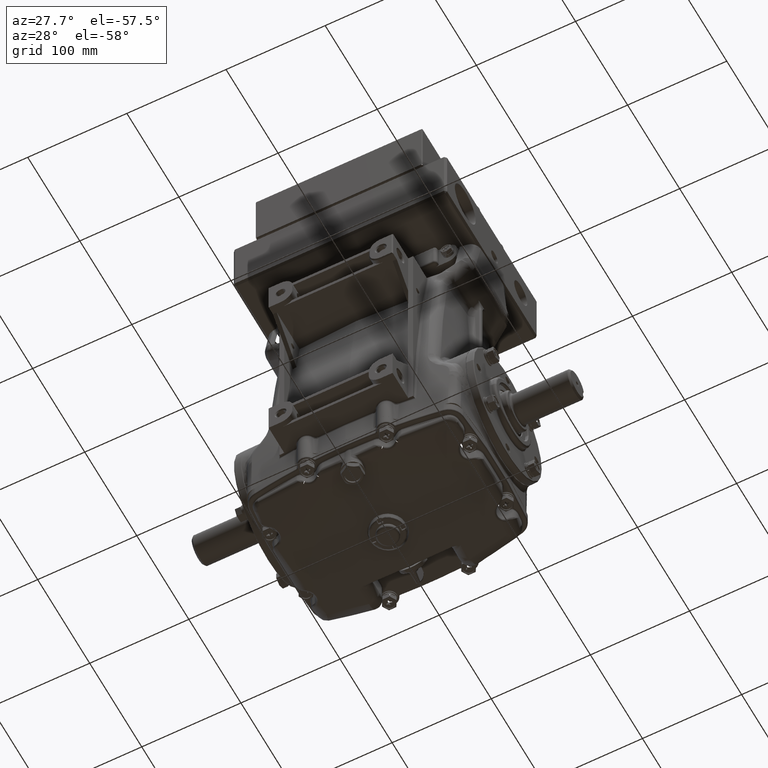
[diagram: clean part render]
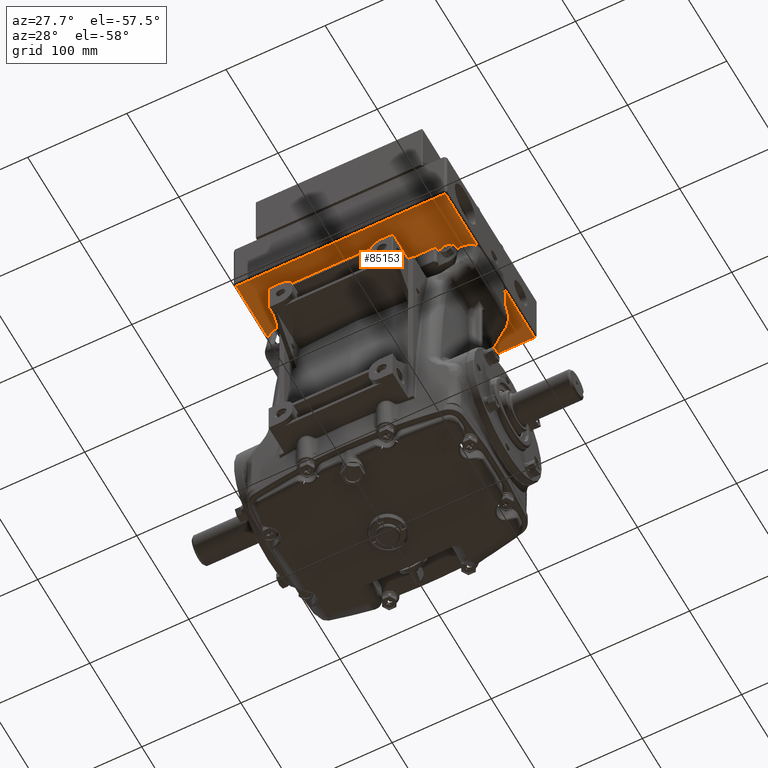
[diagram: same view with one face highlighted and labeled with its STEP entity id]
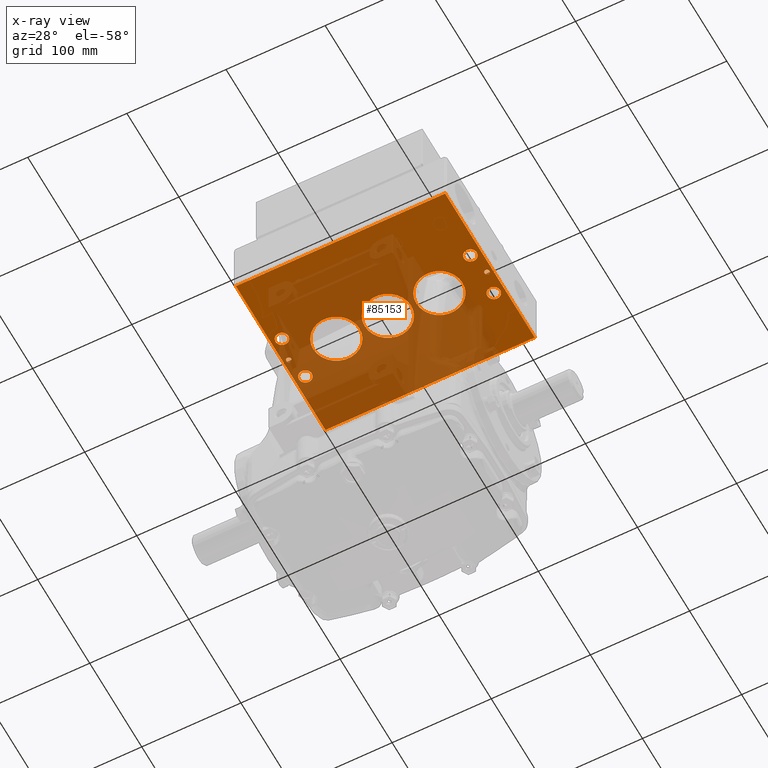
[diagram: x-ray of the same camera — body ghosted, the highlighted face saturated]
A machine part, auxiliary view. The second image highlights one B-rep face of the part: STEP entity #85153.
The next image is the same camera in x-ray: the body ghosted, the highlighted face saturated — about 65% of this face is hidden behind the body in this view.
In plain terms, the highlighted planar face has unit normal (-0, 0, 1).
Its self-contained STEP definition (entity closure, byte-faithful):
#1901 = EDGE_CURVE ( 'NONE', #60821, #31661, #63477, .T. ) ;
#2757 = EDGE_CURVE ( 'NONE', #40532, #23945, #15904, .T. ) ;
#3490 = EDGE_CURVE ( 'NONE', #50782, #42463, #26806, .T. ) ;
#3575 = DIRECTION ( 'NONE',  ( 1.000000000000000000, 0.000000000000000000, 0.000000000000000000 ) ) ;
#3998 = AXIS2_PLACEMENT_3D ( 'NONE', #31350, #24570, #45349 ) ;
#4094 = VERTEX_POINT ( 'NONE', #49970 ) ;
#4664 = AXIS2_PLACEMENT_3D ( 'NONE', #54120, #81774, #19759 ) ;
#5091 = AXIS2_PLACEMENT_3D ( 'NONE', #45930, #87185, #23813 ) ;
#5723 = VECTOR ( 'NONE', #37390, 39.37007874015748143 ) ;
#6066 = CARTESIAN_POINT ( 'NONE',  ( 3.637733168026193731, 0.4370930789018504514, 9.921259842518608707 ) ) ;
#6372 = DIRECTION ( 'NONE',  ( -0.000000000000000000, -0.000000000000000000, -1.000000000000000000 ) ) ;
#6400 = ORIENTED_EDGE ( 'NONE', *, *, #59293, .T. ) ;
#6908 = CARTESIAN_POINT ( 'NONE',  ( 3.795213482986822928, -0.4487336927516928364, 9.921259842518608707 ) ) ;
#7062 = CARTESIAN_POINT ( 'NONE',  ( 2.766316845340539121, 0.4370930789018507290, 9.921259842518608707 ) ) ;
#7924 = ORIENTED_EDGE ( 'NONE', *, *, #50492, .T. ) ;
#8088 = VERTEX_POINT ( 'NONE', #36154 ) ;
#8580 = CIRCLE ( 'NONE', #53393, 0.2559055118110233340 ) ;
#8583 = CIRCLE ( 'NONE', #44684, 0.9199222599915151122 ) ;
#9607 = DIRECTION ( 'NONE',  ( -0.000000000000000000, 0.000000000000000000, 1.000000000000000000 ) ) ;
#9803 = EDGE_CURVE ( 'NONE', #31661, #60821, #71487, .T. ) ;
#10321 = CARTESIAN_POINT ( 'NONE',  ( -4.196912501265145146, 1.322919850555393628, 9.921259842518608707 ) ) ;
#11657 = DIRECTION ( 'NONE',  ( -0.000000000000000000, -0.000000000000000000, 1.000000000000000000 ) ) ;
#12116 = AXIS2_PLACEMENT_3D ( 'NONE', #58771, #36183, #71002 ) ;
#12167 = DIRECTION ( 'NONE',  ( -0.000000000000000000, -0.000000000000000000, 1.000000000000000000 ) ) ;
#13322 = DIRECTION ( 'NONE',  ( 1.000000000000000000, 0.000000000000000000, 0.000000000000000000 ) ) ;
#13517 = EDGE_CURVE ( 'NONE', #32383, #13790, #60373, .T. ) ;
#13790 = VERTEX_POINT ( 'NONE', #50218 ) ;
#14092 = CARTESIAN_POINT ( 'NONE',  ( -4.039432186304516392, 0.4370930789018504514, 9.921259842518608707 ) ) ;
#14301 = EDGE_LOOP ( 'NONE', ( #18478, #35815 ) ) ;
#14412 = VERTEX_POINT ( 'NONE', #82797 ) ;
#14879 = VERTEX_POINT ( 'NONE', #22910 ) ;
#14910 = DIRECTION ( 'NONE',  ( -0.000000000000000000, -0.000000000000000000, -1.000000000000000000 ) ) ;
#15257 = LINE ( 'NONE', #84941, #44242 ) ;
#15357 = DIRECTION ( 'NONE',  ( -1.000000000000000000, 0.000000000000000000, 0.000000000000000000 ) ) ;
#15904 = CIRCLE ( 'NONE', #53472, 0.2559055118110233340 ) ;
#15963 = EDGE_CURVE ( 'NONE', #76022, #50782, #50476, .T. ) ;
#16123 = CARTESIAN_POINT ( 'NONE',  ( 3.952693797947458343, -3.224324243932790601, 9.921259842518608707 ) ) ;
#16215 = CIRCLE ( 'NONE', #4664, 0.2559055118110233340 ) ;
#16402 = CARTESIAN_POINT ( 'NONE',  ( 1.846394585349027784, 0.4370930789018507290, 9.921259842518608707 ) ) ;
#16701 = CARTESIAN_POINT ( 'NONE',  ( -4.354392816225778340, 3.626069456854607242, 9.921259842518608707 ) ) ;
#16788 = EDGE_LOOP ( 'NONE', ( #68079, #23711 ) ) ;
#17879 = CIRCLE ( 'NONE', #82936, 0.9199222599915151122 ) ;
#18396 = CARTESIAN_POINT ( 'NONE',  ( -2.248093603627350223, 0.4370930789018501739, 9.921259842518608707 ) ) ;
#18478 = ORIENTED_EDGE ( 'NONE', *, *, #50263, .F. ) ;
#19641 = AXIS2_PLACEMENT_3D ( 'NONE', #26903, #61259, #13322 ) ;
#19663 = EDGE_CURVE ( 'NONE', #13790, #32383, #24771, .T. ) ;
#19759 = DIRECTION ( 'NONE',  ( 1.000000000000000000, 0.000000000000000000, 0.000000000000000000 ) ) ;
#20970 = AXIS2_PLACEMENT_3D ( 'NONE', #16402, #9607, #37220 ) ;
#22585 = EDGE_LOOP ( 'NONE', ( #76767, #39014 ) ) ;
#22910 = CARTESIAN_POINT ( 'NONE',  ( -3.168015863618865335, 0.4370930789018503404, 9.921259842518608707 ) ) ;
#23711 = ORIENTED_EDGE ( 'NONE', *, *, #86005, .T. ) ;
#23813 = DIRECTION ( 'NONE',  ( 1.000000000000000000, 0.000000000000000000, 0.000000000000000000 ) ) ;
#23945 = VERTEX_POINT ( 'NONE', #51408 ) ;
#24520 = AXIS2_PLACEMENT_3D ( 'NONE', #42798, #65385, #56781 ) ;
#24570 = DIRECTION ( 'NONE',  ( -0.000000000000000000, 0.000000000000000000, 1.000000000000000000 ) ) ;
#24708 = PLANE ( 'NONE',  #5091 ) ;
#24771 = CIRCLE ( 'NONE', #43456, 0.9199222599915148901 ) ;
#25160 = FACE_BOUND ( 'NONE', #71725, .T. ) ;
#25750 = CARTESIAN_POINT ( 'NONE',  ( 3.539307971175799761, -0.4487336927516928364, 9.921259842518608707 ) ) ;
#26806 = LINE ( 'NONE', #47580, #46369 ) ;
#26903 = CARTESIAN_POINT ( 'NONE',  ( 3.539307971175799761, 1.322919850555393628, 9.921259842518608707 ) ) ;
#27150 = CARTESIAN_POINT ( 'NONE',  ( 3.736158364876587257, 0.4370930789018504514, 9.921259842518608707 ) ) ;
#27195 = EDGE_CURVE ( 'NONE', #67287, #85691, #81802, .T. ) ;
#27693 = DIRECTION ( 'NONE',  ( -1.000000000000000000, -1.290957005378088335E-16, 0.000000000000000000 ) ) ;
#27857 = CARTESIAN_POINT ( 'NONE',  ( -4.354392816225780116, -3.145584086452483330, 9.921259842518608707 ) ) ;
#28221 = CARTESIAN_POINT ( 'NONE',  ( 0.7190727508523536704, 0.4370930789018504514, 9.921259842518608707 ) ) ;
#28694 = EDGE_LOOP ( 'NONE', ( #39852, #78644 ) ) ;
#29550 = DIRECTION ( 'NONE',  ( 1.000000000000000000, 1.290957005378089075E-16, 0.000000000000000000 ) ) ;
#30152 = DIRECTION ( 'NONE',  ( 1.577021341797097560E-16, 1.000000000000000000, 0.000000000000000000 ) ) ;
#30709 = DIRECTION ( 'NONE',  ( -0.000000000000000000, -0.000000000000000000, 1.000000000000000000 ) ) ;
#30854 = DIRECTION ( 'NONE',  ( 1.000000000000000000, 0.000000000000000000, 0.000000000000000000 ) ) ;
#31350 = CARTESIAN_POINT ( 'NONE',  ( -0.2008495091391611642, 0.4370930789018504514, 9.921259842518608707 ) ) ;
#31485 = FACE_BOUND ( 'NONE', #65929, .T. ) ;
#31661 = VERTEX_POINT ( 'NONE', #79073 ) ;
#31675 = EDGE_LOOP ( 'NONE', ( #56565, #77240 ) ) ;
#31937 = FACE_OUTER_BOUND ( 'NONE', #60156, .T. ) ;
#31939 = EDGE_CURVE ( 'NONE', #4094, #54412, #16215, .T. ) ;
#32383 = VERTEX_POINT ( 'NONE', #28221 ) ;
#32586 = ORIENTED_EDGE ( 'NONE', *, *, #83492, .T. ) ;
#33389 = VERTEX_POINT ( 'NONE', #69251 ) ;
#33858 = CARTESIAN_POINT ( 'NONE',  ( -3.685101477643098811, -0.4487336927516928364, 9.921259842518608707 ) ) ;
#34088 = DIRECTION ( 'NONE',  ( -0.000000000000000000, 0.000000000000000000, 1.000000000000000000 ) ) ;
#34895 = DIRECTION ( 'NONE',  ( -0.000000000000000000, 0.000000000000000000, 1.000000000000000000 ) ) ;
#35302 = DIRECTION ( 'NONE',  ( -1.000000000000000000, 0.000000000000000000, 0.000000000000000000 ) ) ;
#35815 = ORIENTED_EDGE ( 'NONE', *, *, #40297, .F. ) ;
#36097 = CARTESIAN_POINT ( 'NONE',  ( 3.539307971175799761, 1.322919850555393628, 9.921259842518608707 ) ) ;
#36154 = CARTESIAN_POINT ( 'NONE',  ( 0.9264723253575164463, 0.4370930789018508955, 9.921259842518608707 ) ) ;
#36183 = DIRECTION ( 'NONE',  ( -0.000000000000000000, 0.000000000000000000, 1.000000000000000000 ) ) ;
#36710 = ORIENTED_EDGE ( 'NONE', *, *, #54608, .T. ) ;
#37200 = DIRECTION ( 'NONE',  ( -0.000000000000000000, -0.000000000000000000, 1.000000000000000000 ) ) ;
#37220 = DIRECTION ( 'NONE',  ( 1.000000000000000000, 0.000000000000000000, 0.000000000000000000 ) ) ;
#37390 = DIRECTION ( 'NONE',  ( 6.308085367188390241E-16, -1.000000000000000000, 0.000000000000000000 ) ) ;
#38141 = CIRCLE ( 'NONE', #20970, 0.9199222599915113374 ) ;
#38274 = FACE_BOUND ( 'NONE', #22585, .T. ) ;
#39014 = ORIENTED_EDGE ( 'NONE', *, *, #1901, .F. ) ;
#39852 = ORIENTED_EDGE ( 'NONE', *, *, #13517, .T. ) ;
#39970 = CARTESIAN_POINT ( 'NONE',  ( -3.941006989454121978, 1.322919850555393628, 9.921259842518608707 ) ) ;
#40297 = EDGE_CURVE ( 'NONE', #14412, #60254, #77688, .T. ) ;
#40532 = VERTEX_POINT ( 'NONE', #10321 ) ;
#41042 = AXIS2_PLACEMENT_3D ( 'NONE', #25750, #12167, #3575 ) ;
#41149 = AXIS2_PLACEMENT_3D ( 'NONE', #76054, #6372, #35302 ) ;
#41238 = CARTESIAN_POINT ( 'NONE',  ( -0.2008495091391611642, 0.4370930789018504514, 9.921259842518608707 ) ) ;
#42463 = VERTEX_POINT ( 'NONE', #27857 ) ;
#42798 = CARTESIAN_POINT ( 'NONE',  ( -4.137857383154909918, 0.4370930789018504514, 9.921259842518608707 ) ) ;
#42985 = DIRECTION ( 'NONE',  ( 1.000000000000000000, 0.000000000000000000, 0.000000000000000000 ) ) ;
#43120 = LINE ( 'NONE', #63904, #43449 ) ;
#43449 = VECTOR ( 'NONE', #29550, 39.37007874015748143 ) ;
#43456 = AXIS2_PLACEMENT_3D ( 'NONE', #41238, #34895, #49766 ) ;
#44242 = VECTOR ( 'NONE', #30152, 39.37007874015748143 ) ;
#44273 = CARTESIAN_POINT ( 'NONE',  ( 3.736158364876587257, 0.4370930789018504514, 9.921259842518608707 ) ) ;
#44306 = AXIS2_PLACEMENT_3D ( 'NONE', #85957, #30709, #66880 ) ;
#44318 = ORIENTED_EDGE ( 'NONE', *, *, #2757, .T. ) ;
#44615 = VERTEX_POINT ( 'NONE', #16701 ) ;
#44684 = AXIS2_PLACEMENT_3D ( 'NONE', #18396, #34088, #45959 ) ;
#45157 = ORIENTED_EDGE ( 'NONE', *, *, #3490, .T. ) ;
#45349 = DIRECTION ( 'NONE',  ( 1.000000000000000000, 0.000000000000000000, 0.000000000000000000 ) ) ;
#45930 = CARTESIAN_POINT ( 'NONE',  ( -4.433132973706092272, -3.224324243932796374, 9.921259842518608707 ) ) ;
#45959 = DIRECTION ( 'NONE',  ( 1.000000000000000000, 0.000000000000000000, 0.000000000000000000 ) ) ;
#46271 = EDGE_CURVE ( 'NONE', #80659, #33389, #56937, .T. ) ;
#46369 = VECTOR ( 'NONE', #27693, 39.37007874015748143 ) ;
#47580 = CARTESIAN_POINT ( 'NONE',  ( -4.433132973706092272, -3.145584086452483330, 9.921259842518608707 ) ) ;
#49121 = ORIENTED_EDGE ( 'NONE', *, *, #74650, .T. ) ;
#49222 = DIRECTION ( 'NONE',  ( -0.000000000000000000, -0.000000000000000000, 1.000000000000000000 ) ) ;
#49673 = CIRCLE ( 'NONE', #12116, 0.9199222599915113374 ) ;
#49766 = DIRECTION ( 'NONE',  ( 1.000000000000000000, 0.000000000000000000, 0.000000000000000000 ) ) ;
#49970 = CARTESIAN_POINT ( 'NONE',  ( -4.196912501265145146, -0.4487336927516928364, 9.921259842518608707 ) ) ;
#50218 = CARTESIAN_POINT ( 'NONE',  ( -1.120771769130675999, 0.4370930789018506180, 9.921259842518608707 ) ) ;
#50238 = EDGE_LOOP ( 'NONE', ( #83881, #44318 ) ) ;
#50263 = EDGE_CURVE ( 'NONE', #60254, #14412, #73070, .T. ) ;
#50476 = LINE ( 'NONE', #16123, #5723 ) ;
#50492 = EDGE_CURVE ( 'NONE', #42463, #44615, #15257, .T. ) ;
#50782 = VERTEX_POINT ( 'NONE', #88520 ) ;
#51408 = CARTESIAN_POINT ( 'NONE',  ( -3.685101477643098811, 1.322919850555393628, 9.921259842518608707 ) ) ;
#52933 = DIRECTION ( 'NONE',  ( -1.000000000000000000, 0.000000000000000000, 0.000000000000000000 ) ) ;
#53393 = AXIS2_PLACEMENT_3D ( 'NONE', #36097, #49222, #76859 ) ;
#53472 = AXIS2_PLACEMENT_3D ( 'NONE', #73208, #11657, #66409 ) ;
#53614 = ORIENTED_EDGE ( 'NONE', *, *, #15963, .T. ) ;
#54120 = CARTESIAN_POINT ( 'NONE',  ( -3.941006989454121978, -0.4487336927516928364, 9.921259842518608707 ) ) ;
#54412 = VERTEX_POINT ( 'NONE', #33858 ) ;
#54608 = EDGE_CURVE ( 'NONE', #14879, #72703, #8583, .T. ) ;
#56565 = ORIENTED_EDGE ( 'NONE', *, *, #59559, .T. ) ;
#56781 = DIRECTION ( 'NONE',  ( -1.000000000000000000, 0.000000000000000000, 0.000000000000000000 ) ) ;
#56937 = CIRCLE ( 'NONE', #41042, 0.2559055118110233340 ) ;
#57702 = FACE_BOUND ( 'NONE', #31675, .T. ) ;
#58771 = CARTESIAN_POINT ( 'NONE',  ( 1.846394585349027784, 0.4370930789018507290, 9.921259842518608707 ) ) ;
#59046 = FACE_BOUND ( 'NONE', #28694, .T. ) ;
#59293 = EDGE_CURVE ( 'NONE', #54412, #4094, #69914, .T. ) ;
#59498 = FACE_BOUND ( 'NONE', #14301, .T. ) ;
#59559 = EDGE_CURVE ( 'NONE', #69987, #8088, #49673, .T. ) ;
#60156 = EDGE_LOOP ( 'NONE', ( #53614, #45157, #7924, #79362 ) ) ;
#60254 = VERTEX_POINT ( 'NONE', #6066 ) ;
#60373 = CIRCLE ( 'NONE', #3998, 0.9199222599915148901 ) ;
#60512 = ORIENTED_EDGE ( 'NONE', *, *, #27195, .T. ) ;
#60601 = EDGE_CURVE ( 'NONE', #8088, #69987, #38141, .T. ) ;
#60821 = VERTEX_POINT ( 'NONE', #14092 ) ;
#61259 = DIRECTION ( 'NONE',  ( -0.000000000000000000, -0.000000000000000000, 1.000000000000000000 ) ) ;
#63477 = CIRCLE ( 'NONE', #24520, 0.09842519685039324839 ) ;
#63904 = CARTESIAN_POINT ( 'NONE',  ( -4.433132973706094049, 3.626069456854607242, 9.921259842518608707 ) ) ;
#64513 = FACE_BOUND ( 'NONE', #16788, .T. ) ;
#65385 = DIRECTION ( 'NONE',  ( -0.000000000000000000, -0.000000000000000000, -1.000000000000000000 ) ) ;
#65929 = EDGE_LOOP ( 'NONE', ( #6400, #69931 ) ) ;
#66409 = DIRECTION ( 'NONE',  ( 1.000000000000000000, 0.000000000000000000, 0.000000000000000000 ) ) ;
#66880 = DIRECTION ( 'NONE',  ( 1.000000000000000000, 0.000000000000000000, 0.000000000000000000 ) ) ;
#67287 = VERTEX_POINT ( 'NONE', #84720 ) ;
#67874 = CARTESIAN_POINT ( 'NONE',  ( 3.283402459364776149, 1.322919850555393628, 9.921259842518608707 ) ) ;
#68079 = ORIENTED_EDGE ( 'NONE', *, *, #46271, .T. ) ;
#69251 = CARTESIAN_POINT ( 'NONE',  ( 3.283402459364776149, -0.4487336927516928364, 9.921259842518608707 ) ) ;
#69914 = CIRCLE ( 'NONE', #77170, 0.2559055118110233340 ) ;
#69931 = ORIENTED_EDGE ( 'NONE', *, *, #31939, .T. ) ;
#69987 = VERTEX_POINT ( 'NONE', #7062 ) ;
#70372 = EDGE_LOOP ( 'NONE', ( #60512, #49121 ) ) ;
#71002 = DIRECTION ( 'NONE',  ( 1.000000000000000000, 0.000000000000000000, 0.000000000000000000 ) ) ;
#71166 = EDGE_CURVE ( 'NONE', #44615, #76022, #43120, .T. ) ;
#71487 = CIRCLE ( 'NONE', #41149, 0.09842519685039324839 ) ;
#71725 = EDGE_LOOP ( 'NONE', ( #32586, #36710 ) ) ;
#72644 = FACE_BOUND ( 'NONE', #50238, .T. ) ;
#72703 = VERTEX_POINT ( 'NONE', #76349 ) ;
#72918 = CARTESIAN_POINT ( 'NONE',  ( -3.941006989454121978, -0.4487336927516928364, 9.921259842518608707 ) ) ;
#73070 = CIRCLE ( 'NONE', #73135, 0.09842519685039324839 ) ;
#73135 = AXIS2_PLACEMENT_3D ( 'NONE', #44273, #14910, #15357 ) ;
#73208 = CARTESIAN_POINT ( 'NONE',  ( -3.941006989454121978, 1.322919850555393628, 9.921259842518608707 ) ) ;
#74650 = EDGE_CURVE ( 'NONE', #85691, #67287, #8580, .T. ) ;
#75117 = DIRECTION ( 'NONE',  ( -0.000000000000000000, -0.000000000000000000, -1.000000000000000000 ) ) ;
#75623 = CARTESIAN_POINT ( 'NONE',  ( -2.248093603627350223, 0.4370930789018501739, 9.921259842518608707 ) ) ;
#76022 = VERTEX_POINT ( 'NONE', #76771 ) ;
#76054 = CARTESIAN_POINT ( 'NONE',  ( -4.137857383154909918, 0.4370930789018504514, 9.921259842518608707 ) ) ;
#76349 = CARTESIAN_POINT ( 'NONE',  ( -1.328171343635834889, 0.4370930789018501739, 9.921259842518608707 ) ) ;
#76767 = ORIENTED_EDGE ( 'NONE', *, *, #9803, .F. ) ;
#76771 = CARTESIAN_POINT ( 'NONE',  ( 3.952693797947453902, 3.626069456854608575, 9.921259842518608707 ) ) ;
#76859 = DIRECTION ( 'NONE',  ( 1.000000000000000000, 0.000000000000000000, 0.000000000000000000 ) ) ;
#77170 = AXIS2_PLACEMENT_3D ( 'NONE', #72918, #37200, #30854 ) ;
#77240 = ORIENTED_EDGE ( 'NONE', *, *, #60601, .T. ) ;
#77398 = DIRECTION ( 'NONE',  ( -0.000000000000000000, 0.000000000000000000, 1.000000000000000000 ) ) ;
#77688 = CIRCLE ( 'NONE', #84955, 0.09842519685039324839 ) ;
#78308 = AXIS2_PLACEMENT_3D ( 'NONE', #39970, #88862, #88414 ) ;
#78644 = ORIENTED_EDGE ( 'NONE', *, *, #19663, .T. ) ;
#79073 = CARTESIAN_POINT ( 'NONE',  ( -4.236282580005302556, 0.4370930789018504514, 9.921259842518608707 ) ) ;
#79362 = ORIENTED_EDGE ( 'NONE', *, *, #71166, .T. ) ;
#79897 = FACE_BOUND ( 'NONE', #70372, .T. ) ;
#80659 = VERTEX_POINT ( 'NONE', #6908 ) ;
#81774 = DIRECTION ( 'NONE',  ( -0.000000000000000000, -0.000000000000000000, 1.000000000000000000 ) ) ;
#81802 = CIRCLE ( 'NONE', #19641, 0.2559055118110233340 ) ;
#82797 = CARTESIAN_POINT ( 'NONE',  ( 3.834583561726980339, 0.4370930789018504514, 9.921259842518608707 ) ) ;
#82936 = AXIS2_PLACEMENT_3D ( 'NONE', #75623, #77398, #42985 ) ;
#83368 = CIRCLE ( 'NONE', #44306, 0.2559055118110233340 ) ;
#83492 = EDGE_CURVE ( 'NONE', #72703, #14879, #17879, .T. ) ;
#83881 = ORIENTED_EDGE ( 'NONE', *, *, #87321, .T. ) ;
#84720 = CARTESIAN_POINT ( 'NONE',  ( 3.795213482986822928, 1.322919850555393628, 9.921259842518608707 ) ) ;
#84941 = CARTESIAN_POINT ( 'NONE',  ( -4.354392816225780116, -3.224324243932796374, 9.921259842518608707 ) ) ;
#84955 = AXIS2_PLACEMENT_3D ( 'NONE', #27150, #75117, #52933 ) ;
#85153 = ADVANCED_FACE ( 'NONE', ( #31937, #59498, #38274, #72644, #31485, #64513, #79897, #57702, #25160, #59046 ), #24708, .F. ) ;
#85691 = VERTEX_POINT ( 'NONE', #67874 ) ;
#85957 = CARTESIAN_POINT ( 'NONE',  ( 3.539307971175799761, -0.4487336927516928364, 9.921259842518608707 ) ) ;
#86005 = EDGE_CURVE ( 'NONE', #33389, #80659, #83368, .T. ) ;
#87038 = CIRCLE ( 'NONE', #78308, 0.2559055118110233340 ) ;
#87185 = DIRECTION ( 'NONE',  ( -0.000000000000000000, 0.000000000000000000, 1.000000000000000000 ) ) ;
#87321 = EDGE_CURVE ( 'NONE', #23945, #40532, #87038, .T. ) ;
#88414 = DIRECTION ( 'NONE',  ( 1.000000000000000000, 0.000000000000000000, 0.000000000000000000 ) ) ;
#88520 = CARTESIAN_POINT ( 'NONE',  ( 3.952693797947458343, -3.145584086452482442, 9.921259842518608707 ) ) ;
#88862 = DIRECTION ( 'NONE',  ( -0.000000000000000000, -0.000000000000000000, 1.000000000000000000 ) ) ;